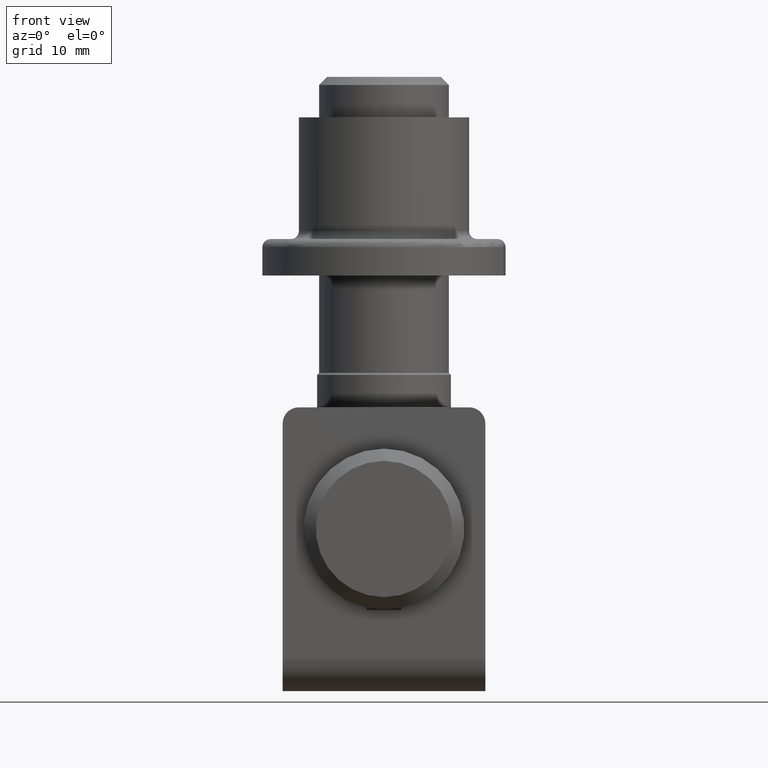
[diagram: clean part render]
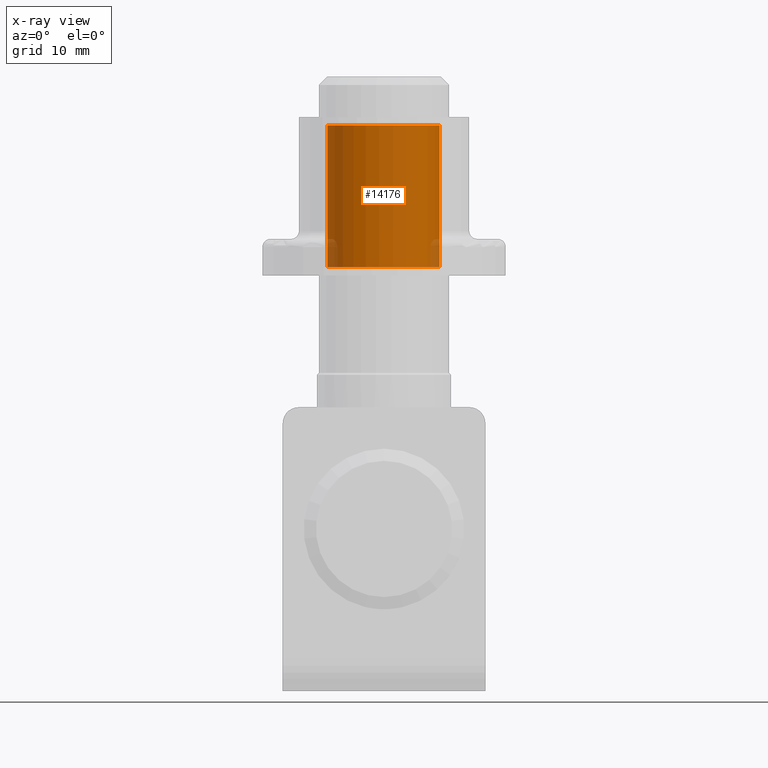
[diagram: x-ray — body ghosted, one internal face saturated and labeled with its STEP entity id]
A machine part, front view, then the same camera in x-ray: the body is ghosted and one INTERNAL B-rep face — a face not visible from any outside direction — is saturated and labeled: STEP entity #14176.
In plain terms, the highlighted cylindrical surface (partial cylindrical patch) has radius 7 mm, axis along (-0, -0, 1).
Its self-contained STEP definition (entity closure, byte-faithful):
#309 = AXIS2_PLACEMENT_3D ( 'NONE', #14076, #15273, #15374 ) ;
#1658 = LINE ( 'NONE', #14714, #10306 ) ;
#2040 = VERTEX_POINT ( 'NONE', #11171 ) ;
#2432 = DIRECTION ( 'NONE',  ( 0.000000000000000000, 0.000000000000000000, 1.000000000000000000 ) ) ;
#2594 = ORIENTED_EDGE ( 'NONE', *, *, #11379, .T. ) ;
#3817 = DIRECTION ( 'NONE',  ( -0.000000000000000000, 1.000000000000000000, -0.000000000000000000 ) ) ;
#3912 = AXIS2_PLACEMENT_3D ( 'NONE', #6216, #15794, #15620 ) ;
#3964 = DIRECTION ( 'NONE',  ( -0.000000000000000000, 1.000000000000000000, -0.000000000000000000 ) ) ;
#4945 = CARTESIAN_POINT ( 'NONE',  ( 0.000000000000000000, 0.9999999999999974465, 6.999999999999992895 ) ) ;
#4994 = EDGE_CURVE ( 'NONE', #15381, #2040, #15191, .T. ) ;
#5341 = DIRECTION ( 'NONE',  ( -0.000000000000000000, 1.000000000000000000, -0.000000000000000000 ) ) ;
#6216 = CARTESIAN_POINT ( 'NONE',  ( 0.000000000000000000, 0.9999999999999974465, 0.000000000000000000 ) ) ;
#6244 = EDGE_LOOP ( 'NONE', ( #12709, #7246, #2594, #14651 ) ) ;
#7246 = ORIENTED_EDGE ( 'NONE', *, *, #4994, .T. ) ;
#8951 = CARTESIAN_POINT ( 'NONE',  ( 0.000000000000000000, 18.50000000000000355, 6.999999999999992895 ) ) ;
#9020 = EDGE_CURVE ( 'NONE', #17161, #15381, #13267, .T. ) ;
#9505 = CYLINDRICAL_SURFACE ( 'NONE', #10622, 6.999999999999992895 ) ;
#9735 = VECTOR ( 'NONE', #3817, 1000.000000000000000 ) ;
#10306 = VECTOR ( 'NONE', #3964, 1000.000000000000000 ) ;
#10409 = EDGE_CURVE ( 'NONE', #17161, #13407, #1658, .T. ) ;
#10506 = CARTESIAN_POINT ( 'NONE',  ( 0.000000000000000000, 19.50000000000000000, 0.000000000000000000 ) ) ;
#10622 = AXIS2_PLACEMENT_3D ( 'NONE', #10506, #5341, #2432 ) ;
#11171 = CARTESIAN_POINT ( 'NONE',  ( 8.572527594031464315E-16, 18.50000000000000355, -6.999999999999992895 ) ) ;
#11184 = FACE_OUTER_BOUND ( 'NONE', #6244, .T. ) ;
#11379 = EDGE_CURVE ( 'NONE', #2040, #13407, #14470, .T. ) ;
#11816 = CARTESIAN_POINT ( 'NONE',  ( 8.572527594031464315E-16, 19.50000000000000000, -6.999999999999992895 ) ) ;
#12709 = ORIENTED_EDGE ( 'NONE', *, *, #9020, .T. ) ;
#13267 = CIRCLE ( 'NONE', #3912, 6.999999999999992895 ) ;
#13407 = VERTEX_POINT ( 'NONE', #8951 ) ;
#14076 = CARTESIAN_POINT ( 'NONE',  ( 0.000000000000000000, 18.50000000000000355, 0.000000000000000000 ) ) ;
#14176 = ADVANCED_FACE ( 'NONE', ( #11184 ), #9505, .F. ) ;
#14470 = CIRCLE ( 'NONE', #309, 6.999999999999992895 ) ;
#14651 = ORIENTED_EDGE ( 'NONE', *, *, #10409, .F. ) ;
#14714 = CARTESIAN_POINT ( 'NONE',  ( 0.000000000000000000, 19.50000000000000000, 6.999999999999992895 ) ) ;
#15191 = LINE ( 'NONE', #11816, #9735 ) ;
#15273 = DIRECTION ( 'NONE',  ( 0.000000000000000000, 1.000000000000000000, 0.000000000000000000 ) ) ;
#15374 = DIRECTION ( 'NONE',  ( 0.000000000000000000, 0.000000000000000000, 1.000000000000000000 ) ) ;
#15381 = VERTEX_POINT ( 'NONE', #17222 ) ;
#15620 = DIRECTION ( 'NONE',  ( 0.000000000000000000, 0.000000000000000000, -1.000000000000000000 ) ) ;
#15794 = DIRECTION ( 'NONE',  ( 0.000000000000000000, -1.000000000000000000, 0.000000000000000000 ) ) ;
#17161 = VERTEX_POINT ( 'NONE', #4945 ) ;
#17222 = CARTESIAN_POINT ( 'NONE',  ( 8.572527594031464315E-16, 0.9999999999999974465, -6.999999999999992895 ) ) ;